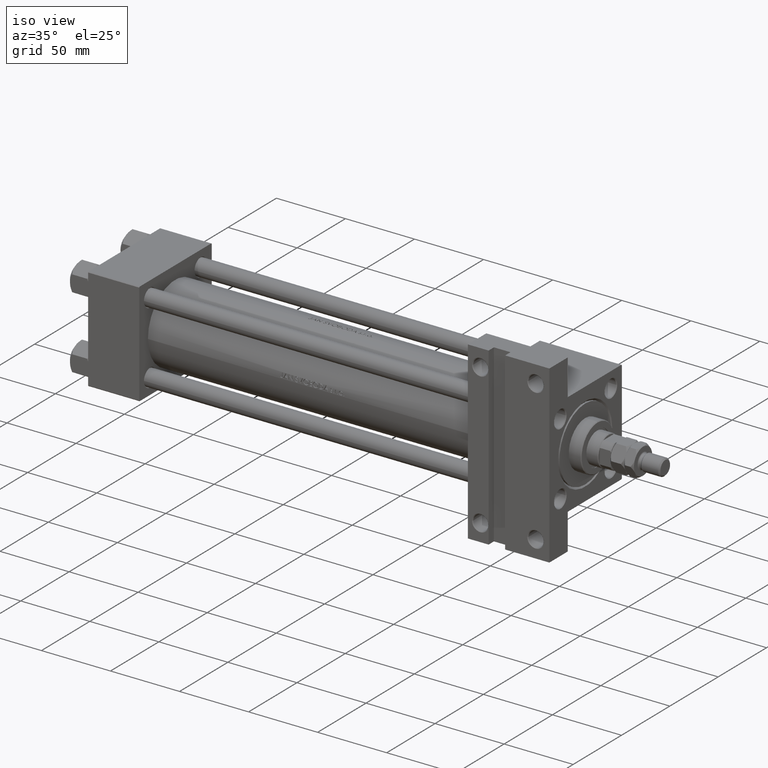
[diagram: clean part render]
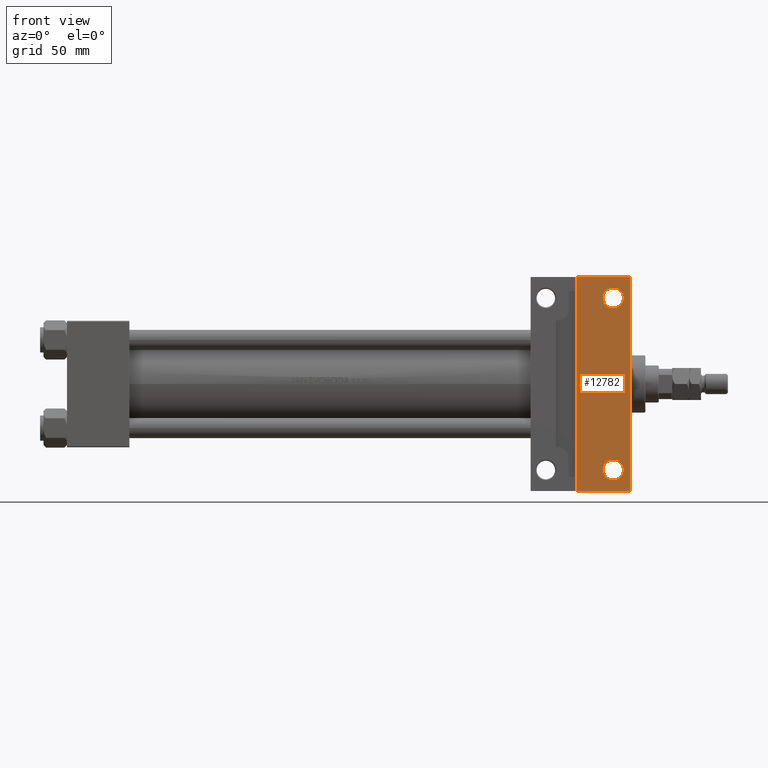
[diagram: tour spotlight — one face highlighted and labeled with its STEP entity id]
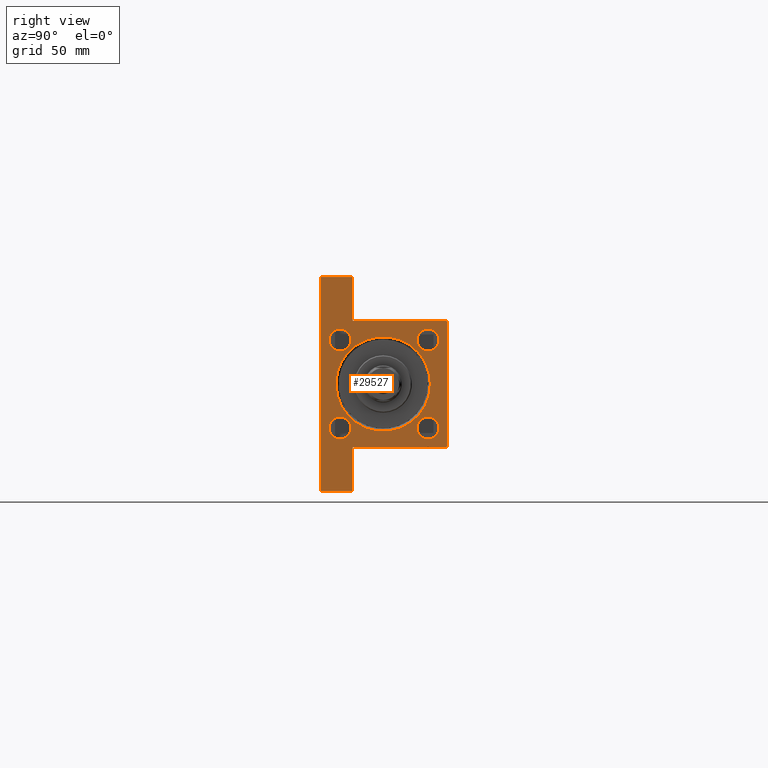
[diagram: tour spotlight — one face highlighted and labeled with its STEP entity id]
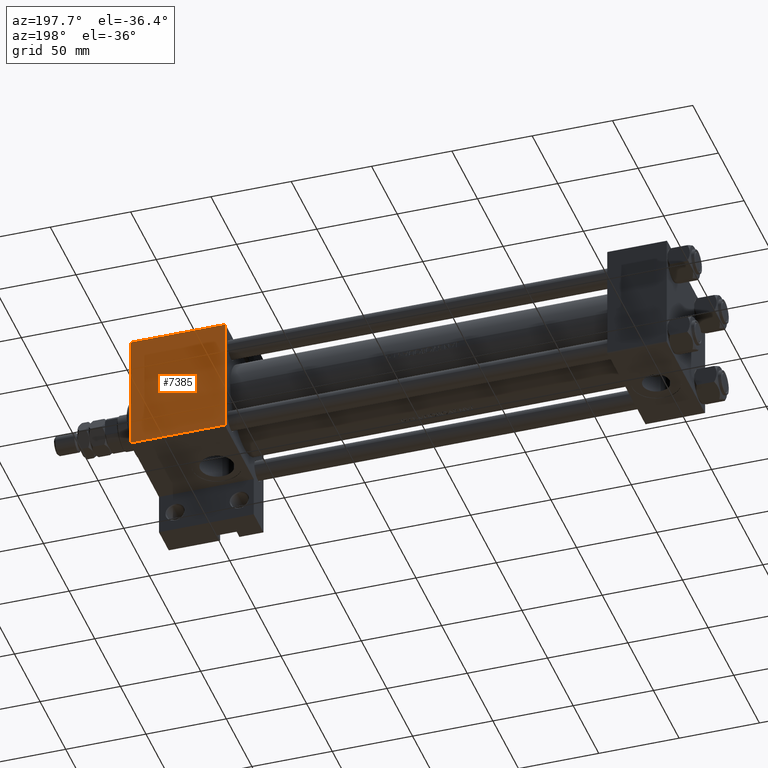
[diagram: tour spotlight — one face highlighted and labeled with its STEP entity id]
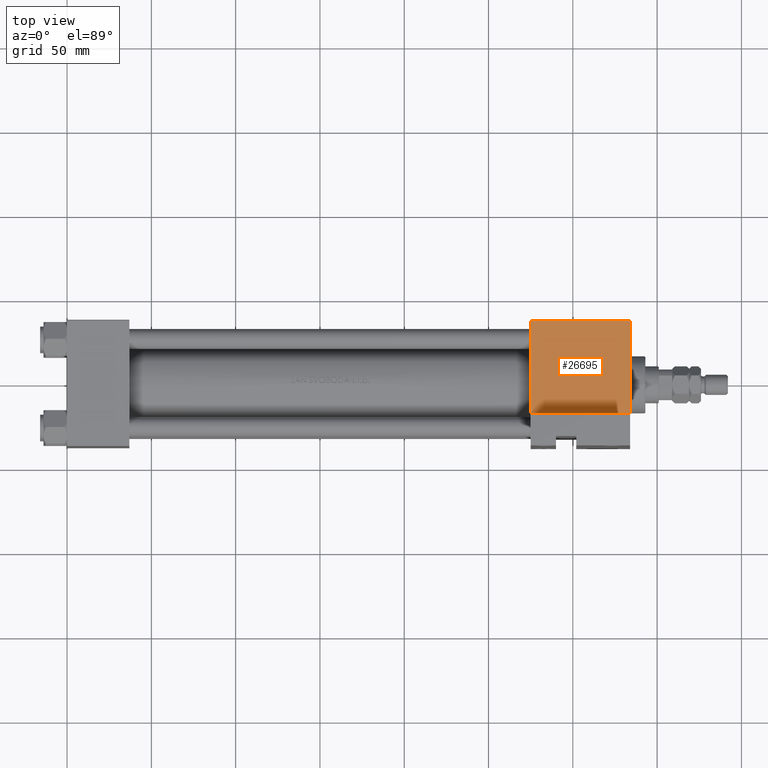
[diagram: tour spotlight — one face highlighted and labeled with its STEP entity id]
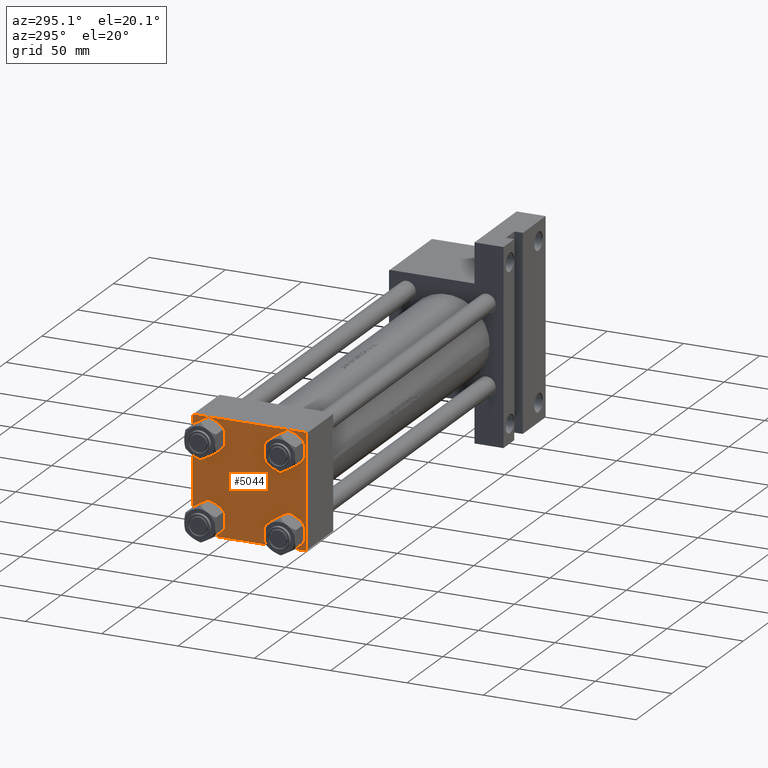
[diagram: tour spotlight — one face highlighted and labeled with its STEP entity id]
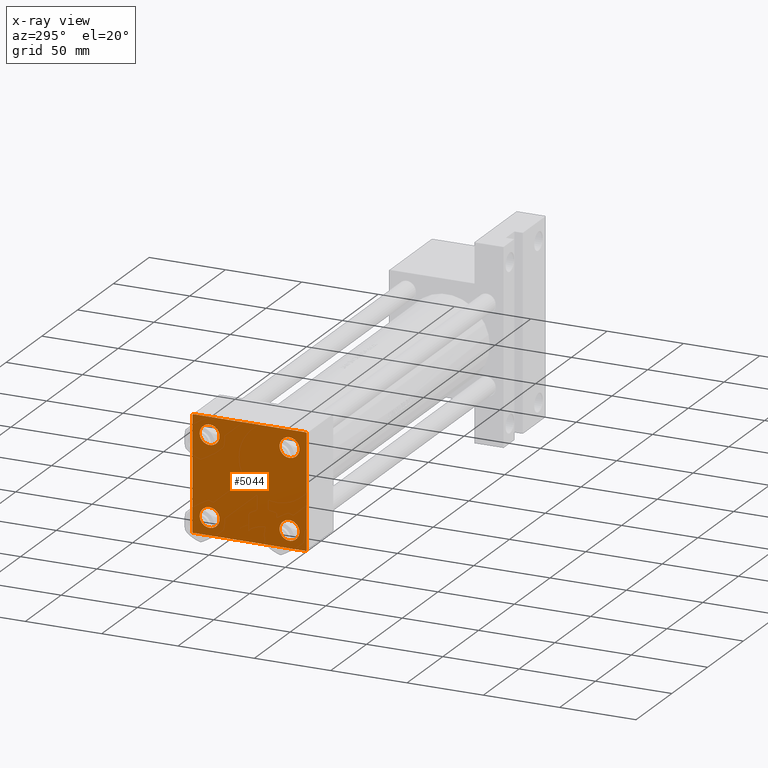
[diagram: x-ray of the same camera — body ghosted, this tour face saturated]
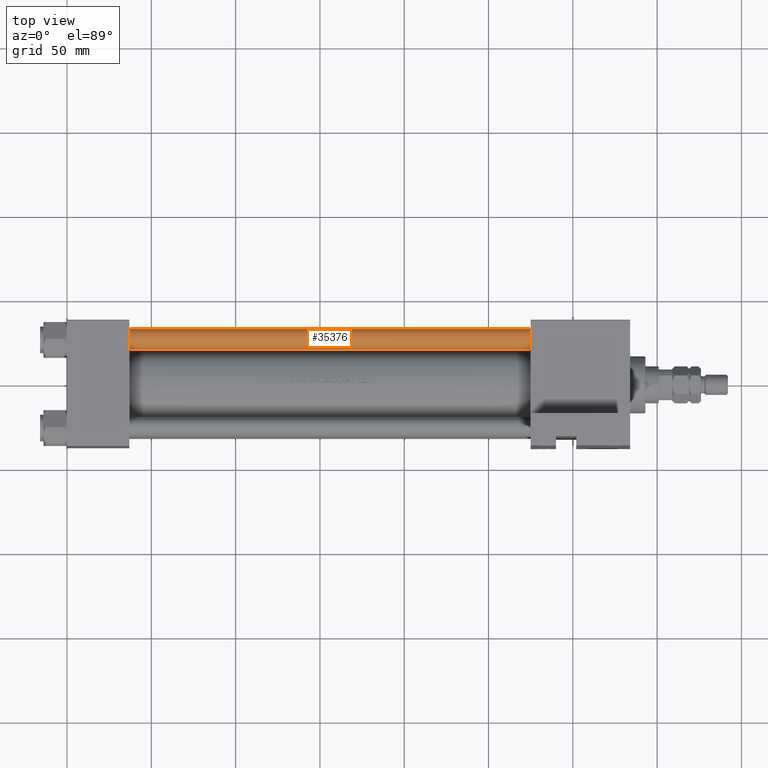
[diagram: tour spotlight — one face highlighted and labeled with its STEP entity id]
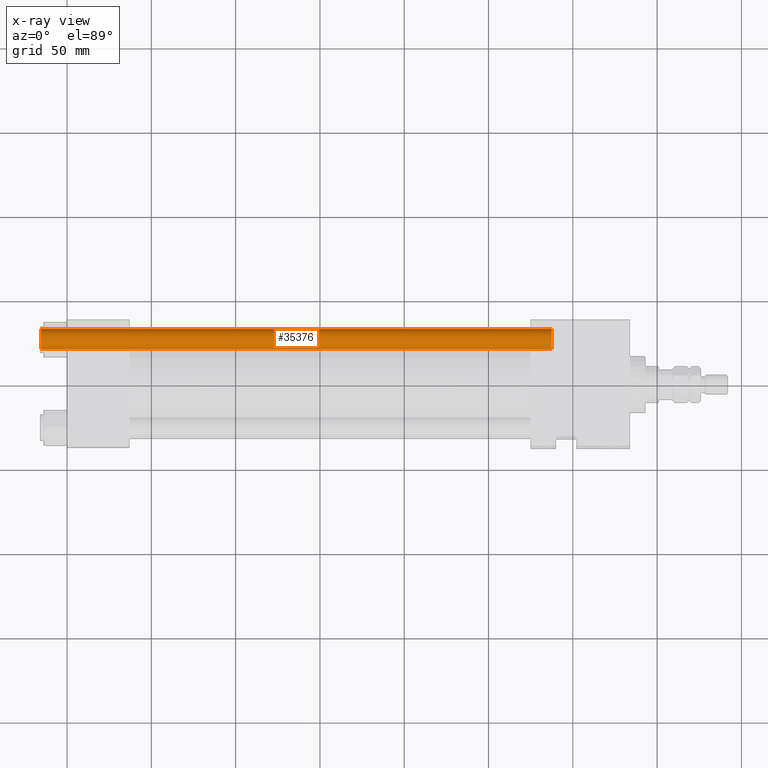
[diagram: x-ray of the same camera — body ghosted, this tour face saturated]
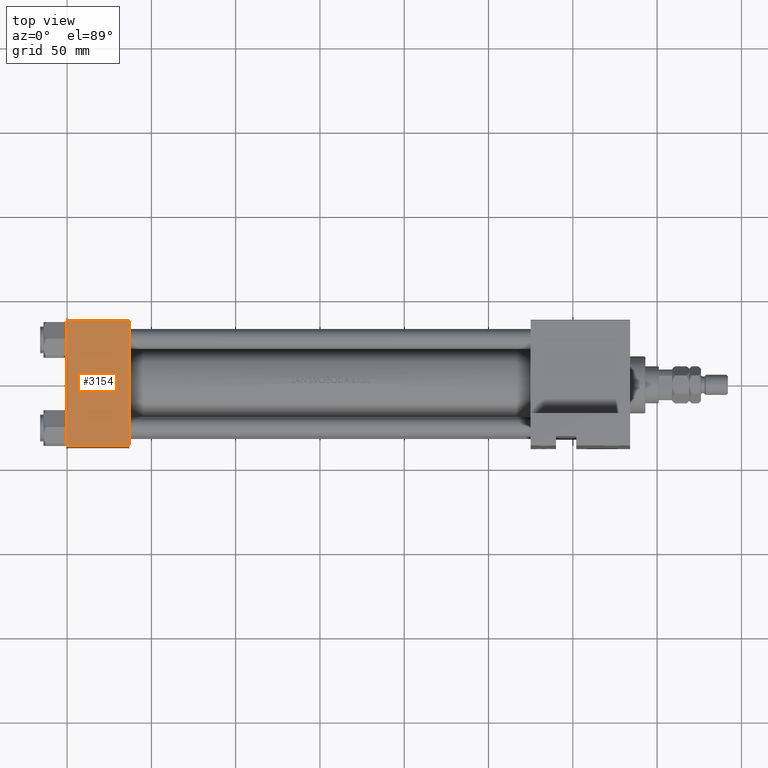
[diagram: tour spotlight — one face highlighted and labeled with its STEP entity id]
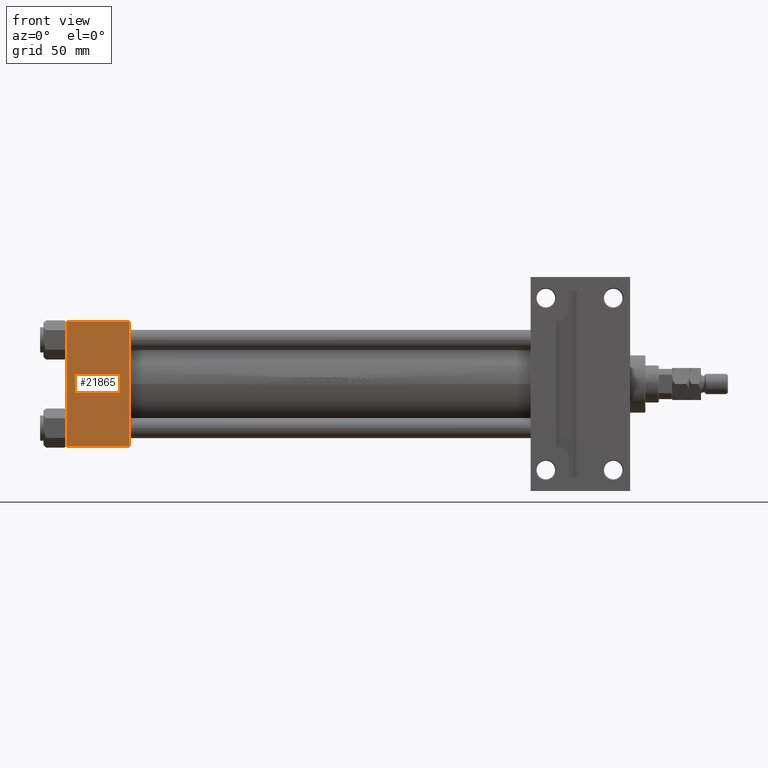
[diagram: tour spotlight — one face highlighted and labeled with its STEP entity id]
A machine part: a face-by-face anatomy tour. The part has 1152 B-rep faces; the first image is the clean iso view, then the 8 largest visible faces are spotlighted one at a time (largest first), each with its STEP entity span.

Face 1 — front view, entity #12782. In plain terms, the highlighted planar face has unit normal (0, -1, 0).
Definition (entity closure, byte-faithful):
#1235 = AXIS2_PLACEMENT_3D ( 'NONE', #19201, #34377, #41590 ) ;
#1619 = CARTESIAN_POINT ( 'NONE',  ( 333.9999999999999432, 37.50000000000000000, -37.50000000000000000 ) ) ;
#2319 = CARTESIAN_POINT ( 'NONE',  ( 323.9999999999999432, 51.00000000000000000, -37.50000000000000000 ) ) ;
#3467 = ORIENTED_EDGE ( 'NONE', *, *, #6993, .T. ) ;
#4220 = DIRECTION ( 'NONE',  ( -1.000000000000000000, 0.000000000000000000, 0.000000000000000000 ) ) ;
#4731 = DIRECTION ( 'NONE',  ( -0.000000000000000000, -1.000000000000000000, -0.000000000000000000 ) ) ;
#5249 = AXIS2_PLACEMENT_3D ( 'NONE', #2319, #10018, #14000 ) ;
#6542 = VECTOR ( 'NONE', #13342, 1000.000000000000000 ) ;
#6993 = EDGE_CURVE ( 'NONE', #28264, #33485, #35379, .T. ) ;
#7058 = ORIENTED_EDGE ( 'NONE', *, *, #43114, .T. ) ;
#7986 = LINE ( 'NONE', #22180, #10989 ) ;
#7994 = VERTEX_POINT ( 'NONE', #43652 ) ;
#8443 = LINE ( 'NONE', #20382, #13829 ) ;
#8484 = VERTEX_POINT ( 'NONE', #38813 ) ;
#9744 = EDGE_CURVE ( 'NONE', #7994, #47477, #29853, .T. ) ;
#10018 = DIRECTION ( 'NONE',  ( -0.000000000000000000, -0.000000000000000000, 1.000000000000000000 ) ) ;
#10350 = ORIENTED_EDGE ( 'NONE', *, *, #29813, .F. ) ;
#10789 = ORIENTED_EDGE ( 'NONE', *, *, #16636, .T. ) ;
#10989 = VECTOR ( 'NONE', #33619, 1000.000000000000000 ) ;
#11017 = CIRCLE ( 'NONE', #27725, 5.999500000000046462 ) ;
#12548 = FACE_OUTER_BOUND ( 'NONE', #42122, .T. ) ;
#12782 = ADVANCED_FACE ( 'NONE', ( #12548, #20269, #16288 ), #35699, .T. ) ;
#13342 = DIRECTION ( 'NONE',  ( -1.000000000000000000, -0.000000000000000000, -0.000000000000000000 ) ) ;
#13829 = VECTOR ( 'NONE', #4731, 1000.000000000000000 ) ;
#14000 = DIRECTION ( 'NONE',  ( -1.000000000000000000, 0.000000000000000000, 0.000000000000000000 ) ) ;
#14330 = VERTEX_POINT ( 'NONE', #39676 ) ;
#16288 = FACE_BOUND ( 'NONE', #22238, .T. ) ;
#16371 = CARTESIAN_POINT ( 'NONE',  ( 323.9999999999999432, -51.00000000000000000, -37.50000000000000000 ) ) ;
#16619 = ORIENTED_EDGE ( 'NONE', *, *, #38013, .T. ) ;
#16636 = EDGE_CURVE ( 'NONE', #42218, #14330, #22743, .T. ) ;
#16844 = EDGE_CURVE ( 'NONE', #8484, #42218, #7986, .T. ) ;
#18128 = EDGE_CURVE ( 'NONE', #47477, #7994, #11017, .T. ) ;
#18641 = DIRECTION ( 'NONE',  ( -0.000000000000000000, -0.000000000000000000, 1.000000000000000000 ) ) ;
#19201 = CARTESIAN_POINT ( 'NONE',  ( 323.9999999999999432, 51.00000000000000000, -37.50000000000000000 ) ) ;
#19330 = CARTESIAN_POINT ( 'NONE',  ( 333.9999999999999432, 63.49999999999997158, -37.50000000000000000 ) ) ;
#19917 = ORIENTED_EDGE ( 'NONE', *, *, #18128, .T. ) ;
#20269 = FACE_BOUND ( 'NONE', #29995, .T. ) ;
#20382 = CARTESIAN_POINT ( 'NONE',  ( 302.0000000000000000, -63.49999999999997158, -37.50000000000000000 ) ) ;
#20521 = DIRECTION ( 'NONE',  ( -1.000000000000000000, 0.000000000000000000, -0.000000000000000000 ) ) ;
#21220 = CARTESIAN_POINT ( 'NONE',  ( 318.0004999999999313, -51.00000000000000000, -37.50000000000000000 ) ) ;
#22151 = VECTOR ( 'NONE', #45127, 1000.000000000000000 ) ;
#22180 = CARTESIAN_POINT ( 'NONE',  ( 274.9999999999999432, 63.49999999999997158, -37.50000000000000000 ) ) ;
#22238 = EDGE_LOOP ( 'NONE', ( #3467, #16619 ) ) ;
#22390 = ORIENTED_EDGE ( 'NONE', *, *, #9744, .T. ) ;
#22743 = LINE ( 'NONE', #26946, #22151 ) ;
#23266 = DIRECTION ( 'NONE',  ( 0.000000000000000000, 0.000000000000000000, -1.000000000000000000 ) ) ;
#24728 = VERTEX_POINT ( 'NONE', #48351 ) ;
#26841 = CARTESIAN_POINT ( 'NONE',  ( 323.9999999999999432, -51.00000000000000000, -37.50000000000000000 ) ) ;
#26946 = CARTESIAN_POINT ( 'NONE',  ( 333.9999999999999432, 37.50000000000000000, -37.50000000000000000 ) ) ;
#27725 = AXIS2_PLACEMENT_3D ( 'NONE', #26841, #18641, #4220 ) ;
#28050 = DIRECTION ( 'NONE',  ( -0.000000000000000000, -0.000000000000000000, 1.000000000000000000 ) ) ;
#28264 = VERTEX_POINT ( 'NONE', #46003 ) ;
#28312 = DIRECTION ( 'NONE',  ( -1.000000000000000000, 0.000000000000000000, 0.000000000000000000 ) ) ;
#29813 = EDGE_CURVE ( 'NONE', #8484, #24728, #8443, .T. ) ;
#29853 = CIRCLE ( 'NONE', #48946, 5.999500000000046462 ) ;
#29995 = EDGE_LOOP ( 'NONE', ( #19917, #22390 ) ) ;
#33485 = VERTEX_POINT ( 'NONE', #42962 ) ;
#33619 = DIRECTION ( 'NONE',  ( 1.000000000000000000, 0.000000000000000000, 0.000000000000000000 ) ) ;
#34377 = DIRECTION ( 'NONE',  ( -0.000000000000000000, -0.000000000000000000, 1.000000000000000000 ) ) ;
#35379 = CIRCLE ( 'NONE', #1235, 5.999500000000046462 ) ;
#35699 = PLANE ( 'NONE',  #45434 ) ;
#35978 = CARTESIAN_POINT ( 'NONE',  ( 274.9999999999999432, -63.50000000000002842, -37.50000000000000000 ) ) ;
#38013 = EDGE_CURVE ( 'NONE', #33485, #28264, #47355, .T. ) ;
#38813 = CARTESIAN_POINT ( 'NONE',  ( 302.0000000000000000, 63.49999999999997158, -37.50000000000000000 ) ) ;
#39676 = CARTESIAN_POINT ( 'NONE',  ( 333.9999999999999432, -63.50000000000002842, -37.50000000000000000 ) ) ;
#41590 = DIRECTION ( 'NONE',  ( -1.000000000000000000, 0.000000000000000000, 0.000000000000000000 ) ) ;
#42122 = EDGE_LOOP ( 'NONE', ( #10350, #47846, #10789, #7058 ) ) ;
#42218 = VERTEX_POINT ( 'NONE', #19330 ) ;
#42962 = CARTESIAN_POINT ( 'NONE',  ( 329.9995000000000118, 51.00000000000000000, -37.50000000000000000 ) ) ;
#43114 = EDGE_CURVE ( 'NONE', #14330, #24728, #43463, .T. ) ;
#43463 = LINE ( 'NONE', #35978, #6542 ) ;
#43652 = CARTESIAN_POINT ( 'NONE',  ( 329.9995000000000118, -51.00000000000000000, -37.50000000000000000 ) ) ;
#45127 = DIRECTION ( 'NONE',  ( 0.000000000000000000, -1.000000000000000000, 0.000000000000000000 ) ) ;
#45434 = AXIS2_PLACEMENT_3D ( 'NONE', #1619, #23266, #20521 ) ;
#46003 = CARTESIAN_POINT ( 'NONE',  ( 318.0004999999999313, 51.00000000000000000, -37.50000000000000000 ) ) ;
#47355 = CIRCLE ( 'NONE', #5249, 5.999500000000046462 ) ;
#47477 = VERTEX_POINT ( 'NONE', #21220 ) ;
#47846 = ORIENTED_EDGE ( 'NONE', *, *, #16844, .T. ) ;
#48351 = CARTESIAN_POINT ( 'NONE',  ( 302.0000000000000000, -63.49999999999997158, -37.50000000000000000 ) ) ;
#48946 = AXIS2_PLACEMENT_3D ( 'NONE', #16371, #28050, #28312 ) ;

Face 2 — right view, entity #29527. In plain terms, the highlighted planar face has unit normal (-1, 0, 0).
Definition (entity closure, byte-faithful):
#112 = CARTESIAN_POINT ( 'NONE',  ( 333.9999999999999432, 37.50000000000000000, 36.99999999999993605 ) ) ;
#210 = AXIS2_PLACEMENT_3D ( 'NONE', #33993, #45429, #14840 ) ;
#305 = CARTESIAN_POINT ( 'NONE',  ( 333.9999999999999432, -37.50000000000000000, 36.99999999999992184 ) ) ;
#707 = CIRCLE ( 'NONE', #28512, 6.499999999999974243 ) ;
#711 = VERTEX_POINT ( 'NONE', #10222 ) ;
#854 = DIRECTION ( 'NONE',  ( 0.000000000000000000, 0.000000000000000000, 1.000000000000000000 ) ) ;
#856 = DIRECTION ( 'NONE',  ( -1.000000000000000000, -0.000000000000000000, 0.000000000000000000 ) ) ;
#932 = CARTESIAN_POINT ( 'NONE',  ( 333.9999999999999432, 0.000000000000000000, -0.5000000000000004441 ) ) ;
#963 = ORIENTED_EDGE ( 'NONE', *, *, #35171, .T. ) ;
#1088 = DIRECTION ( 'NONE',  ( -1.000000000000000000, -0.000000000000000000, 0.000000000000000000 ) ) ;
#1905 = EDGE_CURVE ( 'NONE', #32366, #42218, #9208, .T. ) ;
#2665 = EDGE_CURVE ( 'NONE', #34632, #21508, #36648, .T. ) ;
#3097 = CIRCLE ( 'NONE', #30066, 6.499999999999974243 ) ;
#4368 = DIRECTION ( 'NONE',  ( 0.000000000000000000, 0.000000000000000000, 1.000000000000000000 ) ) ;
#4405 = VERTEX_POINT ( 'NONE', #31500 ) ;
#4619 = DIRECTION ( 'NONE',  ( -0.000000000000000000, -0.7071067811865474617, -0.7071067811865474617 ) ) ;
#4753 = CARTESIAN_POINT ( 'NONE',  ( 333.9999999999999432, 37.49999999999993605, -18.50000000000000000 ) ) ;
#4862 = DIRECTION ( 'NONE',  ( -1.000000000000000000, -0.000000000000000000, 0.000000000000000000 ) ) ;
#5993 = EDGE_LOOP ( 'NONE', ( #963, #12740 ) ) ;
#6105 = CARTESIAN_POINT ( 'NONE',  ( 333.9999999999999432, -26.14999999999999147, 32.64999999999997016 ) ) ;
#6540 = CARTESIAN_POINT ( 'NONE',  ( 333.9999999999999432, 63.49999999999997158, -18.50000000000000000 ) ) ;
#6763 = VECTOR ( 'NONE', #24387, 1000.000000000000000 ) ;
#7013 = VERTEX_POINT ( 'NONE', #305 ) ;
#8445 = EDGE_CURVE ( 'NONE', #28674, #13009, #22916, .T. ) ;
#8536 = EDGE_CURVE ( 'NONE', #7013, #25971, #42792, .T. ) ;
#9208 = LINE ( 'NONE', #32086, #37728 ) ;
#9232 = DIRECTION ( 'NONE',  ( 0.000000000000000000, -0.7071067811865474617, 0.7071067811865474617 ) ) ;
#9472 = CARTESIAN_POINT ( 'NONE',  ( 333.9999999999999432, 36.99999999999994316, 37.49999999999999289 ) ) ;
#9798 = CIRCLE ( 'NONE', #37610, 6.499999999999981348 ) ;
#9878 = DIRECTION ( 'NONE',  ( -1.000000000000000000, -0.000000000000000000, 0.000000000000000000 ) ) ;
#10222 = CARTESIAN_POINT ( 'NONE',  ( 333.9999999999999432, 3.429011037612582176E-15, 27.49999999999993960 ) ) ;
#10364 = VERTEX_POINT ( 'NONE', #112 ) ;
#10378 = ORIENTED_EDGE ( 'NONE', *, *, #43020, .T. ) ;
#10477 = CARTESIAN_POINT ( 'NONE',  ( 333.9999999999999432, 26.14999999999999858, 26.15000000000000213 ) ) ;
#10565 = CIRCLE ( 'NONE', #12943, 6.499999999999974243 ) ;
#10738 = LINE ( 'NONE', #21948, #22589 ) ;
#10879 = VECTOR ( 'NONE', #4619, 1000.000000000000114 ) ;
#11205 = AXIS2_PLACEMENT_3D ( 'NONE', #42925, #24016, #28250 ) ;
#11510 = VECTOR ( 'NONE', #42552, 1000.000000000000000 ) ;
#11891 = CARTESIAN_POINT ( 'NONE',  ( 333.9999999999999432, -26.14999999999999147, 19.65000000000001990 ) ) ;
#12020 = DIRECTION ( 'NONE',  ( 0.000000000000000000, 0.000000000000000000, 1.000000000000000000 ) ) ;
#12516 = CARTESIAN_POINT ( 'NONE',  ( 333.9999999999999432, 0.000000000000000000, -0.5000000000000004441 ) ) ;
#12740 = ORIENTED_EDGE ( 'NONE', *, *, #2665, .T. ) ;
#12904 = VERTEX_POINT ( 'NONE', #36660 ) ;
#12937 = VERTEX_POINT ( 'NONE', #28701 ) ;
#12943 = AXIS2_PLACEMENT_3D ( 'NONE', #20820, #24796, #46952 ) ;
#13009 = VERTEX_POINT ( 'NONE', #22466 ) ;
#13214 = AXIS2_PLACEMENT_3D ( 'NONE', #35172, #27462, #854 ) ;
#14330 = VERTEX_POINT ( 'NONE', #39676 ) ;
#14572 = ORIENTED_EDGE ( 'NONE', *, *, #37957, .T. ) ;
#14840 = DIRECTION ( 'NONE',  ( 0.000000000000000000, 0.000000000000000000, 1.000000000000000000 ) ) ;
#15025 = VERTEX_POINT ( 'NONE', #11891 ) ;
#15925 = CARTESIAN_POINT ( 'NONE',  ( 333.9999999999999432, 37.50000000000000000, 37.49999999999999289 ) ) ;
#16006 = EDGE_CURVE ( 'NONE', #10364, #26826, #18075, .T. ) ;
#16019 = FACE_BOUND ( 'NONE', #31575, .T. ) ;
#16036 = LINE ( 'NONE', #27724, #10879 ) ;
#16126 = VECTOR ( 'NONE', #35285, 1000.000000000000000 ) ;
#16129 = CARTESIAN_POINT ( 'NONE',  ( 333.9999999999999432, -63.50000000000002842, -18.50000000000000000 ) ) ;
#16408 = CARTESIAN_POINT ( 'NONE',  ( 333.9999999999999432, -37.50000000000000711, -18.50000000000000355 ) ) ;
#16636 = EDGE_CURVE ( 'NONE', #42218, #14330, #22743, .T. ) ;
#16721 = EDGE_CURVE ( 'NONE', #12937, #37268, #707, .T. ) ;
#16734 = CARTESIAN_POINT ( 'NONE',  ( 333.9999999999999432, -26.15000000000000213, -19.65000000000002345 ) ) ;
#16737 = ORIENTED_EDGE ( 'NONE', *, *, #36187, .T. ) ;
#17356 = EDGE_CURVE ( 'NONE', #15025, #44993, #3097, .T. ) ;
#17623 = EDGE_LOOP ( 'NONE', ( #40638, #14572 ) ) ;
#18075 = LINE ( 'NONE', #44689, #19941 ) ;
#18220 = ORIENTED_EDGE ( 'NONE', *, *, #1905, .F. ) ;
#18929 = CARTESIAN_POINT ( 'NONE',  ( 333.9999999999999432, -37.50000000000000000, 37.49999999999997868 ) ) ;
#18964 = ORIENTED_EDGE ( 'NONE', *, *, #16006, .F. ) ;
#19070 = ORIENTED_EDGE ( 'NONE', *, *, #38802, .T. ) ;
#19330 = CARTESIAN_POINT ( 'NONE',  ( 333.9999999999999432, 63.49999999999997158, -37.50000000000000000 ) ) ;
#19631 = LINE ( 'NONE', #16129, #16126 ) ;
#19941 = VECTOR ( 'NONE', #33253, 1000.000000000000000 ) ;
#20815 = CARTESIAN_POINT ( 'NONE',  ( 333.9999999999999432, -26.15000000000000213, -32.64999999999998437 ) ) ;
#20820 = CARTESIAN_POINT ( 'NONE',  ( 333.9999999999999432, 26.14999999999999858, 26.15000000000000213 ) ) ;
#20837 = DIRECTION ( 'NONE',  ( 0.000000000000000000, 0.000000000000000000, 1.000000000000000000 ) ) ;
#21275 = ORIENTED_EDGE ( 'NONE', *, *, #41223, .T. ) ;
#21508 = VERTEX_POINT ( 'NONE', #20815 ) ;
#21704 = ORIENTED_EDGE ( 'NONE', *, *, #8445, .T. ) ;
#21942 = ORIENTED_EDGE ( 'NONE', *, *, #27216, .T. ) ;
#21948 = CARTESIAN_POINT ( 'NONE',  ( 333.9999999999999432, -63.50000000000002842, -18.50000000000000000 ) ) ;
#21964 = ORIENTED_EDGE ( 'NONE', *, *, #16721, .T. ) ;
#22151 = VECTOR ( 'NONE', #45127, 1000.000000000000000 ) ;
#22466 = CARTESIAN_POINT ( 'NONE',  ( 333.9999999999999432, -36.99999999999994316, 37.49999999999997868 ) ) ;
#22589 = VECTOR ( 'NONE', #33393, 1000.000000000000000 ) ;
#22701 = EDGE_LOOP ( 'NONE', ( #25596, #10378 ) ) ;
#22743 = LINE ( 'NONE', #26946, #22151 ) ;
#22838 = DIRECTION ( 'NONE',  ( -1.000000000000000000, -0.000000000000000000, 0.000000000000000000 ) ) ;
#22916 = LINE ( 'NONE', #15925, #11510 ) ;
#23245 = FACE_BOUND ( 'NONE', #22701, .T. ) ;
#23487 = CIRCLE ( 'NONE', #48913, 27.99999999999994316 ) ;
#23740 = FACE_BOUND ( 'NONE', #34118, .T. ) ;
#24016 = DIRECTION ( 'NONE',  ( -1.000000000000000000, -0.000000000000000000, 0.000000000000000000 ) ) ;
#24387 = DIRECTION ( 'NONE',  ( 0.000000000000000000, -9.251858538542972814E-17, -1.000000000000000000 ) ) ;
#24481 = EDGE_CURVE ( 'NONE', #27581, #14330, #10738, .T. ) ;
#24578 = CARTESIAN_POINT ( 'NONE',  ( 333.9999999999999432, -26.14999999999999147, 26.14999999999999503 ) ) ;
#24796 = DIRECTION ( 'NONE',  ( -1.000000000000000000, -0.000000000000000000, 0.000000000000000000 ) ) ;
#25368 = EDGE_CURVE ( 'NONE', #13009, #7013, #16036, .T. ) ;
#25505 = CARTESIAN_POINT ( 'NONE',  ( 333.9999999999999432, 63.49999999999997158, -18.50000000000000000 ) ) ;
#25596 = ORIENTED_EDGE ( 'NONE', *, *, #32882, .T. ) ;
#25971 = VERTEX_POINT ( 'NONE', #16408 ) ;
#26324 = EDGE_CURVE ( 'NONE', #12904, #711, #45764, .T. ) ;
#26826 = VERTEX_POINT ( 'NONE', #4753 ) ;
#26946 = CARTESIAN_POINT ( 'NONE',  ( 333.9999999999999432, 37.50000000000000000, -37.50000000000000000 ) ) ;
#27212 = FACE_OUTER_BOUND ( 'NONE', #38083, .T. ) ;
#27216 = EDGE_CURVE ( 'NONE', #37268, #12937, #10565, .T. ) ;
#27283 = DIRECTION ( 'NONE',  ( 0.000000000000000000, 0.000000000000000000, 1.000000000000000000 ) ) ;
#27462 = DIRECTION ( 'NONE',  ( -1.000000000000000000, -0.000000000000000000, 0.000000000000000000 ) ) ;
#27581 = VERTEX_POINT ( 'NONE', #48866 ) ;
#27724 = CARTESIAN_POINT ( 'NONE',  ( 333.9999999999999432, -37.50000000000000000, 36.99999999999992184 ) ) ;
#28250 = DIRECTION ( 'NONE',  ( 0.000000000000000000, 0.000000000000000000, 1.000000000000000000 ) ) ;
#28512 = AXIS2_PLACEMENT_3D ( 'NONE', #10477, #43597, #32637 ) ;
#28674 = VERTEX_POINT ( 'NONE', #31420 ) ;
#28701 = CARTESIAN_POINT ( 'NONE',  ( 333.9999999999999432, 26.14999999999999858, 19.65000000000002700 ) ) ;
#29527 = ADVANCED_FACE ( 'NONE', ( #23740, #16019, #46374, #23245, #38167, #27212 ), #38667, .F. ) ;
#29703 = AXIS2_PLACEMENT_3D ( 'NONE', #42149, #856, #34437 ) ;
#29910 = VECTOR ( 'NONE', #9232, 1000.000000000000114 ) ;
#30066 = AXIS2_PLACEMENT_3D ( 'NONE', #24578, #9878, #20837 ) ;
#30384 = VERTEX_POINT ( 'NONE', #37656 ) ;
#30649 = AXIS2_PLACEMENT_3D ( 'NONE', #38431, #4862, #4368 ) ;
#31420 = CARTESIAN_POINT ( 'NONE',  ( 333.9999999999999432, 36.99999999999994316, 37.49999999999999289 ) ) ;
#31500 = CARTESIAN_POINT ( 'NONE',  ( 333.9999999999999432, 26.14999999999999858, -32.64999999999998437 ) ) ;
#31575 = EDGE_LOOP ( 'NONE', ( #33465, #19070 ) ) ;
#31623 = ORIENTED_EDGE ( 'NONE', *, *, #48481, .T. ) ;
#32086 = CARTESIAN_POINT ( 'NONE',  ( 333.9999999999999432, 63.49999999999997158, -18.50000000000000000 ) ) ;
#32366 = VERTEX_POINT ( 'NONE', #25505 ) ;
#32637 = DIRECTION ( 'NONE',  ( 0.000000000000000000, 0.000000000000000000, 1.000000000000000000 ) ) ;
#32660 = ORIENTED_EDGE ( 'NONE', *, *, #16636, .F. ) ;
#32882 = EDGE_CURVE ( 'NONE', #4405, #30384, #47859, .T. ) ;
#33046 = CARTESIAN_POINT ( 'NONE',  ( 333.9999999999999432, 26.14999999999999858, 32.64999999999997726 ) ) ;
#33253 = DIRECTION ( 'NONE',  ( 0.000000000000000000, 0.000000000000000000, -1.000000000000000000 ) ) ;
#33393 = DIRECTION ( 'NONE',  ( 0.000000000000000000, 0.000000000000000000, -1.000000000000000000 ) ) ;
#33465 = ORIENTED_EDGE ( 'NONE', *, *, #17356, .T. ) ;
#33993 = CARTESIAN_POINT ( 'NONE',  ( 333.9999999999999432, 26.14999999999999858, -26.15000000000000213 ) ) ;
#34118 = EDGE_LOOP ( 'NONE', ( #21964, #21942 ) ) ;
#34437 = DIRECTION ( 'NONE',  ( 0.000000000000000000, 0.000000000000000000, 1.000000000000000000 ) ) ;
#34632 = VERTEX_POINT ( 'NONE', #16734 ) ;
#34762 = CARTESIAN_POINT ( 'NONE',  ( 333.9999999999999432, 26.14999999999999858, -26.15000000000000213 ) ) ;
#35171 = EDGE_CURVE ( 'NONE', #21508, #34632, #39399, .T. ) ;
#35172 = CARTESIAN_POINT ( 'NONE',  ( 333.9999999999999432, -26.14999999999999147, 26.14999999999999503 ) ) ;
#35285 = DIRECTION ( 'NONE',  ( -0.000000000000000000, -1.000000000000000000, -0.000000000000000000 ) ) ;
#35458 = ORIENTED_EDGE ( 'NONE', *, *, #25368, .T. ) ;
#36187 = EDGE_CURVE ( 'NONE', #10364, #28674, #47294, .T. ) ;
#36648 = CIRCLE ( 'NONE', #11205, 6.499999999999981348 ) ;
#36660 = CARTESIAN_POINT ( 'NONE',  ( 333.9999999999999432, 0.000000000000000000, -28.49999999999994316 ) ) ;
#37268 = VERTEX_POINT ( 'NONE', #33046 ) ;
#37610 = AXIS2_PLACEMENT_3D ( 'NONE', #34762, #22838, #27283 ) ;
#37656 = CARTESIAN_POINT ( 'NONE',  ( 333.9999999999999432, 26.14999999999999858, -19.65000000000002345 ) ) ;
#37728 = VECTOR ( 'NONE', #47018, 1000.000000000000000 ) ;
#37957 = EDGE_CURVE ( 'NONE', #711, #12904, #23487, .T. ) ;
#38083 = EDGE_LOOP ( 'NONE', ( #18964, #16737, #21704, #35458, #43335, #21275, #45633, #32660, #18220, #31623 ) ) ;
#38167 = FACE_BOUND ( 'NONE', #17623, .T. ) ;
#38431 = CARTESIAN_POINT ( 'NONE',  ( 333.9999999999999432, -26.15000000000000213, -26.15000000000000213 ) ) ;
#38667 = PLANE ( 'NONE',  #29703 ) ;
#38802 = EDGE_CURVE ( 'NONE', #44993, #15025, #48169, .T. ) ;
#39399 = CIRCLE ( 'NONE', #30649, 6.499999999999981348 ) ;
#39676 = CARTESIAN_POINT ( 'NONE',  ( 333.9999999999999432, -63.50000000000002842, -37.50000000000000000 ) ) ;
#40623 = LINE ( 'NONE', #6540, #41844 ) ;
#40638 = ORIENTED_EDGE ( 'NONE', *, *, #26324, .T. ) ;
#41223 = EDGE_CURVE ( 'NONE', #25971, #27581, #19631, .T. ) ;
#41738 = DIRECTION ( 'NONE',  ( -1.000000000000000000, -0.000000000000000000, 0.000000000000000000 ) ) ;
#41844 = VECTOR ( 'NONE', #47837, 1000.000000000000000 ) ;
#42149 = CARTESIAN_POINT ( 'NONE',  ( 333.9999999999999432, 0.000000000000000000, 0.000000000000000000 ) ) ;
#42218 = VERTEX_POINT ( 'NONE', #19330 ) ;
#42552 = DIRECTION ( 'NONE',  ( 0.000000000000000000, -1.000000000000000000, -1.850371707708594316E-16 ) ) ;
#42792 = LINE ( 'NONE', #18929, #6763 ) ;
#42925 = CARTESIAN_POINT ( 'NONE',  ( 333.9999999999999432, -26.15000000000000213, -26.15000000000000213 ) ) ;
#43020 = EDGE_CURVE ( 'NONE', #30384, #4405, #9798, .T. ) ;
#43335 = ORIENTED_EDGE ( 'NONE', *, *, #8536, .T. ) ;
#43597 = DIRECTION ( 'NONE',  ( -1.000000000000000000, -0.000000000000000000, 0.000000000000000000 ) ) ;
#44689 = CARTESIAN_POINT ( 'NONE',  ( 333.9999999999999432, 37.50000000000000000, 37.49999999999999289 ) ) ;
#44993 = VERTEX_POINT ( 'NONE', #6105 ) ;
#45127 = DIRECTION ( 'NONE',  ( 0.000000000000000000, -1.000000000000000000, 0.000000000000000000 ) ) ;
#45429 = DIRECTION ( 'NONE',  ( -1.000000000000000000, -0.000000000000000000, 0.000000000000000000 ) ) ;
#45633 = ORIENTED_EDGE ( 'NONE', *, *, #24481, .T. ) ;
#45764 = CIRCLE ( 'NONE', #47470, 27.99999999999994316 ) ;
#46374 = FACE_BOUND ( 'NONE', #5993, .T. ) ;
#46456 = DIRECTION ( 'NONE',  ( 0.000000000000000000, 0.000000000000000000, 1.000000000000000000 ) ) ;
#46952 = DIRECTION ( 'NONE',  ( 0.000000000000000000, 0.000000000000000000, 1.000000000000000000 ) ) ;
#47018 = DIRECTION ( 'NONE',  ( 0.000000000000000000, 0.000000000000000000, -1.000000000000000000 ) ) ;
#47294 = LINE ( 'NONE', #9472, #29910 ) ;
#47470 = AXIS2_PLACEMENT_3D ( 'NONE', #932, #41738, #46456 ) ;
#47837 = DIRECTION ( 'NONE',  ( 0.000000000000000000, -1.000000000000000000, 0.000000000000000000 ) ) ;
#47859 = CIRCLE ( 'NONE', #210, 6.499999999999981348 ) ;
#48169 = CIRCLE ( 'NONE', #13214, 6.499999999999974243 ) ;
#48481 = EDGE_CURVE ( 'NONE', #32366, #26826, #40623, .T. ) ;
#48866 = CARTESIAN_POINT ( 'NONE',  ( 333.9999999999999432, -63.50000000000002842, -18.50000000000000000 ) ) ;
#48913 = AXIS2_PLACEMENT_3D ( 'NONE', #12516, #1088, #12020 ) ;

Face 3 — auxiliary view, entity #7385. In plain terms, the highlighted planar face has unit normal (0, -1, -0).
Definition (entity closure, byte-faithful):
#9 = CARTESIAN_POINT ( 'NONE',  ( 333.9999999999999432, 37.50000000000000000, 37.49999999999999289 ) ) ;
#1205 = CARTESIAN_POINT ( 'NONE',  ( 333.9999999999999432, -36.99999999999994316, 37.49999999999997868 ) ) ;
#1700 = LINE ( 'NONE', #1205, #42586 ) ;
#2376 = LINE ( 'NONE', #10804, #17926 ) ;
#5565 = ORIENTED_EDGE ( 'NONE', *, *, #33847, .T. ) ;
#6123 = DIRECTION ( 'NONE',  ( -1.000000000000000000, 0.000000000000000000, 0.000000000000000000 ) ) ;
#7385 = ADVANCED_FACE ( 'NONE', ( #12154 ), #19640, .F. ) ;
#7453 = DIRECTION ( 'NONE',  ( 0.000000000000000000, 1.000000000000000000, 1.850371707708594316E-16 ) ) ;
#8445 = EDGE_CURVE ( 'NONE', #28674, #13009, #22916, .T. ) ;
#9741 = EDGE_CURVE ( 'NONE', #34365, #13009, #1700, .T. ) ;
#9758 = EDGE_LOOP ( 'NONE', ( #12039, #46424, #5565, #32884 ) ) ;
#9988 = AXIS2_PLACEMENT_3D ( 'NONE', #9, #15152, #7453 ) ;
#10178 = EDGE_CURVE ( 'NONE', #28674, #29750, #2376, .T. ) ;
#10804 = CARTESIAN_POINT ( 'NONE',  ( 274.9999999999999432, 36.99999999999994316, 37.49999999999999289 ) ) ;
#11510 = VECTOR ( 'NONE', #42552, 1000.000000000000000 ) ;
#12039 = ORIENTED_EDGE ( 'NONE', *, *, #8445, .F. ) ;
#12154 = FACE_OUTER_BOUND ( 'NONE', #9758, .T. ) ;
#13009 = VERTEX_POINT ( 'NONE', #22466 ) ;
#15152 = DIRECTION ( 'NONE',  ( 0.000000000000000000, 1.850371707708594316E-16, -1.000000000000000000 ) ) ;
#15925 = CARTESIAN_POINT ( 'NONE',  ( 333.9999999999999432, 37.50000000000000000, 37.49999999999999289 ) ) ;
#17926 = VECTOR ( 'NONE', #6123, 1000.000000000000000 ) ;
#18403 = CARTESIAN_POINT ( 'NONE',  ( 274.9999999999999432, 36.99999999999994316, 37.49999999999999289 ) ) ;
#19640 = PLANE ( 'NONE',  #9988 ) ;
#22466 = CARTESIAN_POINT ( 'NONE',  ( 333.9999999999999432, -36.99999999999994316, 37.49999999999997868 ) ) ;
#22916 = LINE ( 'NONE', #15925, #11510 ) ;
#26507 = CARTESIAN_POINT ( 'NONE',  ( 274.9999999999999432, -36.99999999999994316, 37.49999999999997868 ) ) ;
#27734 = LINE ( 'NONE', #35457, #38569 ) ;
#27974 = DIRECTION ( 'NONE',  ( 0.000000000000000000, -1.000000000000000000, -1.850371707708594316E-16 ) ) ;
#28674 = VERTEX_POINT ( 'NONE', #31420 ) ;
#28783 = DIRECTION ( 'NONE',  ( 1.000000000000000000, 0.000000000000000000, 0.000000000000000000 ) ) ;
#29750 = VERTEX_POINT ( 'NONE', #18403 ) ;
#31420 = CARTESIAN_POINT ( 'NONE',  ( 333.9999999999999432, 36.99999999999994316, 37.49999999999999289 ) ) ;
#32884 = ORIENTED_EDGE ( 'NONE', *, *, #9741, .T. ) ;
#33847 = EDGE_CURVE ( 'NONE', #29750, #34365, #27734, .T. ) ;
#34365 = VERTEX_POINT ( 'NONE', #26507 ) ;
#35457 = CARTESIAN_POINT ( 'NONE',  ( 274.9999999999999432, 37.50000000000000000, 37.49999999999999289 ) ) ;
#38569 = VECTOR ( 'NONE', #27974, 1000.000000000000000 ) ;
#42552 = DIRECTION ( 'NONE',  ( 0.000000000000000000, -1.000000000000000000, -1.850371707708594316E-16 ) ) ;
#42586 = VECTOR ( 'NONE', #28783, 1000.000000000000000 ) ;
#46424 = ORIENTED_EDGE ( 'NONE', *, *, #10178, .T. ) ;

Face 4 — top view, entity #26695. In plain terms, the highlighted planar face has unit normal (0, -0, -1).
Definition (entity closure, byte-faithful):
#305 = CARTESIAN_POINT ( 'NONE',  ( 333.9999999999999432, -37.50000000000000000, 36.99999999999992184 ) ) ;
#3440 = VERTEX_POINT ( 'NONE', #31241 ) ;
#3689 = LINE ( 'NONE', #14859, #5863 ) ;
#5566 = LINE ( 'NONE', #11598, #26909 ) ;
#5863 = VECTOR ( 'NONE', #7390, 1000.000000000000000 ) ;
#6763 = VECTOR ( 'NONE', #24387, 1000.000000000000000 ) ;
#7013 = VERTEX_POINT ( 'NONE', #305 ) ;
#7390 = DIRECTION ( 'NONE',  ( -1.000000000000000000, 0.000000000000000000, 0.000000000000000000 ) ) ;
#8536 = EDGE_CURVE ( 'NONE', #7013, #25971, #42792, .T. ) ;
#9738 = AXIS2_PLACEMENT_3D ( 'NONE', #38071, #11193, #26377 ) ;
#11193 = DIRECTION ( 'NONE',  ( 0.000000000000000000, 1.000000000000000000, -9.251858538542972814E-17 ) ) ;
#11598 = CARTESIAN_POINT ( 'NONE',  ( 274.9999999999999432, -37.50000000000000000, -18.50000000000000000 ) ) ;
#12831 = CARTESIAN_POINT ( 'NONE',  ( 274.9999999999999432, -37.50000000000000000, -18.50000000000000000 ) ) ;
#14016 = CARTESIAN_POINT ( 'NONE',  ( 274.9999999999999432, -37.50000000000000000, 37.49999999999997868 ) ) ;
#14859 = CARTESIAN_POINT ( 'NONE',  ( 333.9999999999999432, -37.50000000000000000, 36.99999999999992184 ) ) ;
#15817 = ORIENTED_EDGE ( 'NONE', *, *, #17538, .T. ) ;
#16408 = CARTESIAN_POINT ( 'NONE',  ( 333.9999999999999432, -37.50000000000000711, -18.50000000000000355 ) ) ;
#17538 = EDGE_CURVE ( 'NONE', #32261, #25971, #5566, .T. ) ;
#18929 = CARTESIAN_POINT ( 'NONE',  ( 333.9999999999999432, -37.50000000000000000, 37.49999999999997868 ) ) ;
#23195 = VECTOR ( 'NONE', #48349, 1000.000000000000000 ) ;
#24387 = DIRECTION ( 'NONE',  ( 0.000000000000000000, -9.251858538542972814E-17, -1.000000000000000000 ) ) ;
#25641 = PLANE ( 'NONE',  #9738 ) ;
#25971 = VERTEX_POINT ( 'NONE', #16408 ) ;
#26377 = DIRECTION ( 'NONE',  ( 0.000000000000000000, 9.251858538542972814E-17, 1.000000000000000000 ) ) ;
#26695 = ADVANCED_FACE ( 'NONE', ( #45296 ), #25641, .F. ) ;
#26909 = VECTOR ( 'NONE', #27932, 1000.000000000000000 ) ;
#27932 = DIRECTION ( 'NONE',  ( 1.000000000000000000, -1.176083712526648949E-16, 0.000000000000000000 ) ) ;
#29135 = EDGE_CURVE ( 'NONE', #7013, #3440, #3689, .T. ) ;
#31241 = CARTESIAN_POINT ( 'NONE',  ( 274.9999999999999432, -37.50000000000000000, 36.99999999999992184 ) ) ;
#32188 = LINE ( 'NONE', #14016, #23195 ) ;
#32261 = VERTEX_POINT ( 'NONE', #12831 ) ;
#35767 = ORIENTED_EDGE ( 'NONE', *, *, #42693, .T. ) ;
#37405 = ORIENTED_EDGE ( 'NONE', *, *, #29135, .T. ) ;
#38071 = CARTESIAN_POINT ( 'NONE',  ( 333.9999999999999432, -37.50000000000000000, 37.49999999999997868 ) ) ;
#39235 = EDGE_LOOP ( 'NONE', ( #44563, #37405, #35767, #15817 ) ) ;
#42693 = EDGE_CURVE ( 'NONE', #3440, #32261, #32188, .T. ) ;
#42792 = LINE ( 'NONE', #18929, #6763 ) ;
#44563 = ORIENTED_EDGE ( 'NONE', *, *, #8536, .F. ) ;
#45296 = FACE_OUTER_BOUND ( 'NONE', #39235, .T. ) ;
#48349 = DIRECTION ( 'NONE',  ( 0.000000000000000000, -9.251858538542972814E-17, -1.000000000000000000 ) ) ;

Face 5 — auxiliary view, entity #5044. An x-ray twin of the same camera follows (body ghosted, this face saturated) — the face is partly hidden behind the body. In plain terms, the highlighted planar face has unit normal (-1, 0, -0).
Definition (entity closure, byte-faithful):
#343 = CIRCLE ( 'NONE', #24981, 6.500000000000023093 ) ;
#1076 = CARTESIAN_POINT ( 'NONE',  ( 0.000000000000000000, -26.14999999999999147, 26.15000000000000924 ) ) ;
#1238 = DIRECTION ( 'NONE',  ( 1.000000000000000000, -0.000000000000000000, 0.000000000000000000 ) ) ;
#1457 = FACE_BOUND ( 'NONE', #3557, .T. ) ;
#1487 = CARTESIAN_POINT ( 'NONE',  ( 0.000000000000000000, -26.14999999999999147, 26.15000000000000924 ) ) ;
#1764 = LINE ( 'NONE', #32352, #17849 ) ;
#1863 = EDGE_CURVE ( 'NONE', #47808, #10619, #5499, .T. ) ;
#2124 = VERTEX_POINT ( 'NONE', #3729 ) ;
#2220 = DIRECTION ( 'NONE',  ( 0.000000000000000000, 0.000000000000000000, 1.000000000000000000 ) ) ;
#2424 = FACE_BOUND ( 'NONE', #31634, .T. ) ;
#2669 = CARTESIAN_POINT ( 'NONE',  ( 0.000000000000000000, 37.49999999999999289, 37.50000000000000000 ) ) ;
#3044 = ORIENTED_EDGE ( 'NONE', *, *, #19265, .T. ) ;
#3557 = EDGE_LOOP ( 'NONE', ( #5815, #48824 ) ) ;
#3729 = CARTESIAN_POINT ( 'NONE',  ( 0.000000000000000000, 36.99999999999997868, -37.50000000000000000 ) ) ;
#5044 = ADVANCED_FACE ( 'NONE', ( #43489, #1457, #36503, #2424, #13853 ), #13612, .T. ) ;
#5109 = AXIS2_PLACEMENT_3D ( 'NONE', #31965, #43431, #47148 ) ;
#5230 = ORIENTED_EDGE ( 'NONE', *, *, #23326, .T. ) ;
#5499 = LINE ( 'NONE', #39301, #48069 ) ;
#5815 = ORIENTED_EDGE ( 'NONE', *, *, #27461, .T. ) ;
#6839 = ORIENTED_EDGE ( 'NONE', *, *, #37220, .T. ) ;
#7370 = CARTESIAN_POINT ( 'NONE',  ( 0.000000000000000000, -37.50000000000000711, 36.99999999999999289 ) ) ;
#7635 = CARTESIAN_POINT ( 'NONE',  ( 0.000000000000000000, 26.14999999999999858, -19.64999999999998792 ) ) ;
#8573 = CARTESIAN_POINT ( 'NONE',  ( 0.000000000000000000, 37.49999999999999289, 37.50000000000000000 ) ) ;
#8627 = VERTEX_POINT ( 'NONE', #31592 ) ;
#8846 = DIRECTION ( 'NONE',  ( 0.000000000000000000, 9.251858538542971581E-17, -1.000000000000000000 ) ) ;
#9481 = EDGE_LOOP ( 'NONE', ( #15517, #3044, #10793, #40222, #41981, #22446, #37516, #17956 ) ) ;
#9852 = AXIS2_PLACEMENT_3D ( 'NONE', #1487, #32314, #24600 ) ;
#10010 = VERTEX_POINT ( 'NONE', #7635 ) ;
#10181 = ORIENTED_EDGE ( 'NONE', *, *, #18980, .T. ) ;
#10382 = CARTESIAN_POINT ( 'NONE',  ( 0.000000000000000000, 37.49999999999999289, -37.50000000000000000 ) ) ;
#10607 = LINE ( 'NONE', #2669, #18348 ) ;
#10619 = VERTEX_POINT ( 'NONE', #26119 ) ;
#10622 = CARTESIAN_POINT ( 'NONE',  ( 0.000000000000000000, -26.14999999999999147, -19.64999999999999503 ) ) ;
#10635 = AXIS2_PLACEMENT_3D ( 'NONE', #33454, #48637, #44905 ) ;
#10793 = ORIENTED_EDGE ( 'NONE', *, *, #29055, .T. ) ;
#11169 = CARTESIAN_POINT ( 'NONE',  ( 0.000000000000000000, 26.14999999999999858, 32.65000000000002700 ) ) ;
#11635 = VERTEX_POINT ( 'NONE', #30779 ) ;
#12444 = DIRECTION ( 'NONE',  ( 0.000000000000000000, 0.7071067811865474617, -0.7071067811865474617 ) ) ;
#12524 = EDGE_LOOP ( 'NONE', ( #5230, #10181 ) ) ;
#13612 = PLANE ( 'NONE',  #41138 ) ;
#13853 = FACE_OUTER_BOUND ( 'NONE', #9481, .T. ) ;
#14336 = CARTESIAN_POINT ( 'NONE',  ( 0.000000000000000000, 26.14999999999999858, 19.64999999999998437 ) ) ;
#15256 = VERTEX_POINT ( 'NONE', #7370 ) ;
#15297 = EDGE_CURVE ( 'NONE', #47808, #33008, #10607, .T. ) ;
#15517 = ORIENTED_EDGE ( 'NONE', *, *, #40228, .T. ) ;
#15603 = LINE ( 'NONE', #16085, #29744 ) ;
#15791 = DIRECTION ( 'NONE',  ( 0.000000000000000000, 0.000000000000000000, -1.000000000000000000 ) ) ;
#15976 = VERTEX_POINT ( 'NONE', #14336 ) ;
#16085 = CARTESIAN_POINT ( 'NONE',  ( 0.000000000000000000, 37.24999999999998579, -37.24999999999998579 ) ) ;
#16639 = CARTESIAN_POINT ( 'NONE',  ( -0.000000000000000000, -37.25000000000000000, 37.25000000000000000 ) ) ;
#16859 = DIRECTION ( 'NONE',  ( -1.000000000000000000, 0.000000000000000000, -0.000000000000000000 ) ) ;
#16931 = DIRECTION ( 'NONE',  ( 0.000000000000000000, -0.7071067811865524577, 0.7071067811865426878 ) ) ;
#17532 = DIRECTION ( 'NONE',  ( 1.000000000000000000, -0.000000000000000000, 0.000000000000000000 ) ) ;
#17682 = CARTESIAN_POINT ( 'NONE',  ( 0.000000000000000000, -37.00000000000000711, 37.49999999999999289 ) ) ;
#17701 = CIRCLE ( 'NONE', #48679, 6.500000000000015987 ) ;
#17833 = DIRECTION ( 'NONE',  ( 0.000000000000000000, -1.000000000000000000, -9.251858538542971581E-17 ) ) ;
#17849 = VECTOR ( 'NONE', #16931, 1000.000000000000000 ) ;
#17899 = CIRCLE ( 'NONE', #36968, 6.500000000000023093 ) ;
#17956 = ORIENTED_EDGE ( 'NONE', *, *, #1863, .T. ) ;
#18348 = VECTOR ( 'NONE', #17833, 1000.000000000000000 ) ;
#18549 = VERTEX_POINT ( 'NONE', #10622 ) ;
#18980 = EDGE_CURVE ( 'NONE', #37963, #28744, #44805, .T. ) ;
#19265 = EDGE_CURVE ( 'NONE', #8627, #2124, #15603, .T. ) ;
#20148 = CIRCLE ( 'NONE', #10635, 6.500000000000015987 ) ;
#20166 = CARTESIAN_POINT ( 'NONE',  ( 0.000000000000000000, -26.14999999999999147, 32.65000000000003411 ) ) ;
#21560 = DIRECTION ( 'NONE',  ( -0.000000000000000000, 0.000000000000000000, 1.000000000000000000 ) ) ;
#21829 = VECTOR ( 'NONE', #32308, 1000.000000000000114 ) ;
#21903 = CARTESIAN_POINT ( 'NONE',  ( 0.000000000000000000, 26.14999999999999858, -26.15000000000000213 ) ) ;
#22052 = VERTEX_POINT ( 'NONE', #43945 ) ;
#22351 = EDGE_CURVE ( 'NONE', #41945, #15976, #343, .T. ) ;
#22446 = ORIENTED_EDGE ( 'NONE', *, *, #31842, .T. ) ;
#23108 = EDGE_CURVE ( 'NONE', #28729, #18549, #32115, .T. ) ;
#23326 = EDGE_CURVE ( 'NONE', #28744, #37963, #32886, .T. ) ;
#23675 = CARTESIAN_POINT ( 'NONE',  ( 0.000000000000000000, 36.99999999999999289, 37.50000000000000000 ) ) ;
#23729 = CARTESIAN_POINT ( 'NONE',  ( 0.000000000000000000, -26.14999999999999147, 19.64999999999999147 ) ) ;
#24600 = DIRECTION ( 'NONE',  ( 0.000000000000000000, 0.000000000000000000, 1.000000000000000000 ) ) ;
#24739 = DIRECTION ( 'NONE',  ( 0.000000000000000000, 0.000000000000000000, 1.000000000000000000 ) ) ;
#24832 = VECTOR ( 'NONE', #15791, 1000.000000000000000 ) ;
#24981 = AXIS2_PLACEMENT_3D ( 'NONE', #35937, #39170, #24739 ) ;
#25324 = DIRECTION ( 'NONE',  ( 0.000000000000000000, -1.000000000000000000, -9.251858538542972814E-17 ) ) ;
#25749 = AXIS2_PLACEMENT_3D ( 'NONE', #1076, #37911, #42624 ) ;
#26119 = CARTESIAN_POINT ( 'NONE',  ( 0.000000000000000000, 37.49999999999999289, 37.00000000000000000 ) ) ;
#26546 = DIRECTION ( 'NONE',  ( -0.000000000000000000, -0.7071067811865474617, -0.7071067811865474617 ) ) ;
#27461 = EDGE_CURVE ( 'NONE', #18549, #28729, #17701, .T. ) ;
#28575 = CARTESIAN_POINT ( 'NONE',  ( 0.000000000000000000, 26.14999999999999858, 26.15000000000000213 ) ) ;
#28729 = VERTEX_POINT ( 'NONE', #33884 ) ;
#28744 = VERTEX_POINT ( 'NONE', #20166 ) ;
#28962 = DIRECTION ( 'NONE',  ( 0.000000000000000000, 0.000000000000000000, 1.000000000000000000 ) ) ;
#29055 = EDGE_CURVE ( 'NONE', #2124, #22052, #35789, .T. ) ;
#29215 = CARTESIAN_POINT ( 'NONE',  ( 0.000000000000000000, -26.14999999999999147, -26.15000000000000924 ) ) ;
#29225 = ORIENTED_EDGE ( 'NONE', *, *, #29401, .T. ) ;
#29401 = EDGE_CURVE ( 'NONE', #11635, #10010, #20148, .T. ) ;
#29603 = DIRECTION ( 'NONE',  ( 0.000000000000000000, 0.000000000000000000, 1.000000000000000000 ) ) ;
#29744 = VECTOR ( 'NONE', #26546, 1000.000000000000114 ) ;
#30143 = EDGE_CURVE ( 'NONE', #15256, #37631, #46671, .T. ) ;
#30779 = CARTESIAN_POINT ( 'NONE',  ( 0.000000000000000000, 26.14999999999999858, -32.65000000000001990 ) ) ;
#30929 = EDGE_CURVE ( 'NONE', #22052, #37631, #1764, .T. ) ;
#31592 = CARTESIAN_POINT ( 'NONE',  ( 0.000000000000000000, 37.49999999999999289, -36.99999999999998579 ) ) ;
#31634 = EDGE_LOOP ( 'NONE', ( #48079, #6839 ) ) ;
#31842 = EDGE_CURVE ( 'NONE', #15256, #33008, #42265, .T. ) ;
#31965 = CARTESIAN_POINT ( 'NONE',  ( 0.000000000000000000, -26.14999999999999147, -26.15000000000000924 ) ) ;
#32088 = VECTOR ( 'NONE', #25324, 1000.000000000000000 ) ;
#32115 = CIRCLE ( 'NONE', #5109, 6.500000000000015987 ) ;
#32308 = DIRECTION ( 'NONE',  ( -0.000000000000000000, 0.7071067811865474617, 0.7071067811865474617 ) ) ;
#32314 = DIRECTION ( 'NONE',  ( 1.000000000000000000, -0.000000000000000000, 0.000000000000000000 ) ) ;
#32352 = CARTESIAN_POINT ( 'NONE',  ( 0.000000000000000000, -37.24999999999975842, -37.25000000000027001 ) ) ;
#32731 = CARTESIAN_POINT ( 'NONE',  ( 0.000000000000000000, -37.50000000000000000, -37.00000000000003553 ) ) ;
#32886 = CIRCLE ( 'NONE', #25749, 6.500000000000023093 ) ;
#32906 = VECTOR ( 'NONE', #8846, 1000.000000000000000 ) ;
#33008 = VERTEX_POINT ( 'NONE', #17682 ) ;
#33454 = CARTESIAN_POINT ( 'NONE',  ( 0.000000000000000000, 26.14999999999999858, -26.15000000000000213 ) ) ;
#33586 = DIRECTION ( 'NONE',  ( 1.000000000000000000, -0.000000000000000000, 0.000000000000000000 ) ) ;
#33884 = CARTESIAN_POINT ( 'NONE',  ( 0.000000000000000000, -26.14999999999999147, -32.65000000000002700 ) ) ;
#35789 = LINE ( 'NONE', #10382, #32088 ) ;
#35937 = CARTESIAN_POINT ( 'NONE',  ( 0.000000000000000000, 26.14999999999999858, 26.15000000000000213 ) ) ;
#35946 = CIRCLE ( 'NONE', #38316, 6.500000000000015987 ) ;
#36503 = FACE_BOUND ( 'NONE', #40380, .T. ) ;
#36968 = AXIS2_PLACEMENT_3D ( 'NONE', #28575, #1238, #2220 ) ;
#37220 = EDGE_CURVE ( 'NONE', #15976, #41945, #17899, .T. ) ;
#37516 = ORIENTED_EDGE ( 'NONE', *, *, #15297, .F. ) ;
#37631 = VERTEX_POINT ( 'NONE', #32731 ) ;
#37680 = LINE ( 'NONE', #8573, #24832 ) ;
#37911 = DIRECTION ( 'NONE',  ( 1.000000000000000000, -0.000000000000000000, 0.000000000000000000 ) ) ;
#37963 = VERTEX_POINT ( 'NONE', #23729 ) ;
#38120 = ORIENTED_EDGE ( 'NONE', *, *, #40437, .T. ) ;
#38316 = AXIS2_PLACEMENT_3D ( 'NONE', #21903, #33586, #29603 ) ;
#39170 = DIRECTION ( 'NONE',  ( 1.000000000000000000, -0.000000000000000000, 0.000000000000000000 ) ) ;
#39301 = CARTESIAN_POINT ( 'NONE',  ( 0.000000000000000000, 37.24999999999999289, 37.24999999999999289 ) ) ;
#40222 = ORIENTED_EDGE ( 'NONE', *, *, #30929, .T. ) ;
#40228 = EDGE_CURVE ( 'NONE', #10619, #8627, #37680, .T. ) ;
#40380 = EDGE_LOOP ( 'NONE', ( #38120, #29225 ) ) ;
#40437 = EDGE_CURVE ( 'NONE', #10010, #11635, #35946, .T. ) ;
#41138 = AXIS2_PLACEMENT_3D ( 'NONE', #43959, #16859, #21560 ) ;
#41945 = VERTEX_POINT ( 'NONE', #11169 ) ;
#41981 = ORIENTED_EDGE ( 'NONE', *, *, #30143, .F. ) ;
#42265 = LINE ( 'NONE', #16639, #21829 ) ;
#42624 = DIRECTION ( 'NONE',  ( 0.000000000000000000, 0.000000000000000000, 1.000000000000000000 ) ) ;
#43431 = DIRECTION ( 'NONE',  ( 1.000000000000000000, -0.000000000000000000, 0.000000000000000000 ) ) ;
#43489 = FACE_BOUND ( 'NONE', #12524, .T. ) ;
#43945 = CARTESIAN_POINT ( 'NONE',  ( 0.000000000000000000, -37.00000000000002132, -37.50000000000000711 ) ) ;
#43959 = CARTESIAN_POINT ( 'NONE',  ( 0.000000000000000000, 0.000000000000000000, 0.000000000000000000 ) ) ;
#44805 = CIRCLE ( 'NONE', #9852, 6.500000000000023093 ) ;
#44905 = DIRECTION ( 'NONE',  ( 0.000000000000000000, 0.000000000000000000, 1.000000000000000000 ) ) ;
#45940 = CARTESIAN_POINT ( 'NONE',  ( 0.000000000000000000, -37.50000000000000711, 37.49999999999999289 ) ) ;
#46671 = LINE ( 'NONE', #45940, #32906 ) ;
#47148 = DIRECTION ( 'NONE',  ( 0.000000000000000000, 0.000000000000000000, 1.000000000000000000 ) ) ;
#47808 = VERTEX_POINT ( 'NONE', #23675 ) ;
#48069 = VECTOR ( 'NONE', #12444, 1000.000000000000114 ) ;
#48079 = ORIENTED_EDGE ( 'NONE', *, *, #22351, .T. ) ;
#48637 = DIRECTION ( 'NONE',  ( 1.000000000000000000, -0.000000000000000000, 0.000000000000000000 ) ) ;
#48679 = AXIS2_PLACEMENT_3D ( 'NONE', #29215, #17532, #28962 ) ;
#48824 = ORIENTED_EDGE ( 'NONE', *, *, #23108, .T. ) ;

Face 6 — top view, entity #35376. An x-ray twin of the same camera follows (body ghosted, this face saturated) — the face is partly hidden behind the body. In plain terms, the highlighted cylindrical surface (edge-blend (fillet) strip) has radius 6 mm, axis along (1, -0, 0).
Definition (entity closure, byte-faithful):
#1230 = CIRCLE ( 'NONE', #17136, 6.000000000000000888 ) ;
#1759 = CARTESIAN_POINT ( 'NONE',  ( 6.000000000000000888, 7.347880794884120722E-16, 0.4999999999999449329 ) ) ;
#1835 = VERTEX_POINT ( 'NONE', #23156 ) ;
#3181 = EDGE_LOOP ( 'NONE', ( #41210, #48931, #8118, #27016 ) ) ;
#5608 = CARTESIAN_POINT ( 'NONE',  ( -6.000000000000000888, 0.000000000000000000, 304.0000000000000000 ) ) ;
#8118 = ORIENTED_EDGE ( 'NONE', *, *, #14355, .T. ) ;
#8737 = FACE_OUTER_BOUND ( 'NONE', #3181, .T. ) ;
#14355 = EDGE_CURVE ( 'NONE', #1835, #30058, #34041, .T. ) ;
#14779 = AXIS2_PLACEMENT_3D ( 'NONE', #31362, #42815, #35603 ) ;
#16097 = EDGE_CURVE ( 'NONE', #34842, #23646, #19296, .T. ) ;
#17136 = AXIS2_PLACEMENT_3D ( 'NONE', #42725, #38977, #20814 ) ;
#19296 = LINE ( 'NONE', #37966, #28709 ) ;
#19553 = DIRECTION ( 'NONE',  ( -0.000000000000000000, -0.000000000000000000, -1.000000000000000000 ) ) ;
#20814 = DIRECTION ( 'NONE',  ( 1.000000000000000000, 0.000000000000000000, 0.000000000000000000 ) ) ;
#23156 = CARTESIAN_POINT ( 'NONE',  ( -6.000000000000000888, 0.000000000000000000, 303.5000000000000000 ) ) ;
#23646 = VERTEX_POINT ( 'NONE', #1759 ) ;
#25157 = CIRCLE ( 'NONE', #31505, 6.000000000000000888 ) ;
#25317 = CYLINDRICAL_SURFACE ( 'NONE', #14779, 6.000000000000000888 ) ;
#27016 = ORIENTED_EDGE ( 'NONE', *, *, #33562, .T. ) ;
#27980 = DIRECTION ( 'NONE',  ( -0.000000000000000000, -0.000000000000000000, -1.000000000000000000 ) ) ;
#28709 = VECTOR ( 'NONE', #19553, 1000.000000000000000 ) ;
#30058 = VERTEX_POINT ( 'NONE', #31485 ) ;
#30272 = CARTESIAN_POINT ( 'NONE',  ( 0.000000000000000000, 0.000000000000000000, 303.5000000000000000 ) ) ;
#31362 = CARTESIAN_POINT ( 'NONE',  ( 0.000000000000000000, 0.000000000000000000, 304.0000000000000000 ) ) ;
#31485 = CARTESIAN_POINT ( 'NONE',  ( -6.000000000000000888, 0.000000000000000000, 0.4999999999999449329 ) ) ;
#31505 = AXIS2_PLACEMENT_3D ( 'NONE', #30272, #42465, #34259 ) ;
#33562 = EDGE_CURVE ( 'NONE', #30058, #23646, #1230, .T. ) ;
#34041 = LINE ( 'NONE', #5608, #34837 ) ;
#34107 = CARTESIAN_POINT ( 'NONE',  ( 6.000000000000000888, 7.347880794884120722E-16, 303.5000000000000000 ) ) ;
#34259 = DIRECTION ( 'NONE',  ( 1.000000000000000000, 0.000000000000000000, 0.000000000000000000 ) ) ;
#34837 = VECTOR ( 'NONE', #27980, 1000.000000000000000 ) ;
#34842 = VERTEX_POINT ( 'NONE', #34107 ) ;
#35376 = ADVANCED_FACE ( 'NONE', ( #8737 ), #25317, .T. ) ;
#35603 = DIRECTION ( 'NONE',  ( -1.000000000000000000, 0.000000000000000000, 0.000000000000000000 ) ) ;
#37966 = CARTESIAN_POINT ( 'NONE',  ( 6.000000000000000888, 7.347880794884120722E-16, 304.0000000000000000 ) ) ;
#38977 = DIRECTION ( 'NONE',  ( -0.000000000000000000, -0.000000000000000000, 1.000000000000000000 ) ) ;
#39853 = EDGE_CURVE ( 'NONE', #34842, #1835, #25157, .T. ) ;
#41210 = ORIENTED_EDGE ( 'NONE', *, *, #16097, .F. ) ;
#42465 = DIRECTION ( 'NONE',  ( 0.000000000000000000, 0.000000000000000000, -1.000000000000000000 ) ) ;
#42725 = CARTESIAN_POINT ( 'NONE',  ( 0.000000000000000000, 0.000000000000000000, 0.4999999999999449329 ) ) ;
#42815 = DIRECTION ( 'NONE',  ( -0.000000000000000000, -0.000000000000000000, -1.000000000000000000 ) ) ;
#48931 = ORIENTED_EDGE ( 'NONE', *, *, #39853, .T. ) ;

Face 7 — top view, entity #3154. In plain terms, the highlighted planar face has unit normal (0, 0, -1).
Definition (entity closure, byte-faithful):
#504 = CARTESIAN_POINT ( 'NONE',  ( 37.00000000000000000, -37.50000000000000711, 36.99999999999999289 ) ) ;
#3154 = ADVANCED_FACE ( 'NONE', ( #28054 ), #39750, .F. ) ;
#5509 = ORIENTED_EDGE ( 'NONE', *, *, #30143, .T. ) ;
#7370 = CARTESIAN_POINT ( 'NONE',  ( 0.000000000000000000, -37.50000000000000711, 36.99999999999999289 ) ) ;
#8846 = DIRECTION ( 'NONE',  ( 0.000000000000000000, 9.251858538542971581E-17, -1.000000000000000000 ) ) ;
#12919 = VECTOR ( 'NONE', #29592, 1000.000000000000000 ) ;
#13041 = VECTOR ( 'NONE', #31354, 1000.000000000000000 ) ;
#14695 = EDGE_CURVE ( 'NONE', #37631, #32345, #45062, .T. ) ;
#15256 = VERTEX_POINT ( 'NONE', #7370 ) ;
#16124 = CARTESIAN_POINT ( 'NONE',  ( 37.00000000000000000, -37.50000000000000711, 37.49999999999999289 ) ) ;
#20607 = DIRECTION ( 'NONE',  ( 0.000000000000000000, -9.251858538542971581E-17, 1.000000000000000000 ) ) ;
#23229 = EDGE_LOOP ( 'NONE', ( #5509, #27061, #42955, #30050 ) ) ;
#23600 = EDGE_CURVE ( 'NONE', #39572, #15256, #32094, .T. ) ;
#25380 = CARTESIAN_POINT ( 'NONE',  ( 37.00000000000000000, -37.50000000000000711, 37.49999999999999289 ) ) ;
#27061 = ORIENTED_EDGE ( 'NONE', *, *, #14695, .T. ) ;
#28054 = FACE_OUTER_BOUND ( 'NONE', #23229, .T. ) ;
#28481 = VECTOR ( 'NONE', #44813, 1000.000000000000000 ) ;
#29592 = DIRECTION ( 'NONE',  ( 0.000000000000000000, 9.251858538542971581E-17, -1.000000000000000000 ) ) ;
#30050 = ORIENTED_EDGE ( 'NONE', *, *, #23600, .T. ) ;
#30143 = EDGE_CURVE ( 'NONE', #15256, #37631, #46671, .T. ) ;
#31354 = DIRECTION ( 'NONE',  ( -1.000000000000000000, 0.000000000000000000, 0.000000000000000000 ) ) ;
#32094 = LINE ( 'NONE', #36075, #13041 ) ;
#32345 = VERTEX_POINT ( 'NONE', #35495 ) ;
#32731 = CARTESIAN_POINT ( 'NONE',  ( 0.000000000000000000, -37.50000000000000000, -37.00000000000003553 ) ) ;
#32906 = VECTOR ( 'NONE', #8846, 1000.000000000000000 ) ;
#33095 = LINE ( 'NONE', #25380, #12919 ) ;
#33861 = CARTESIAN_POINT ( 'NONE',  ( 37.00000000000000000, -37.50000000000000000, -37.00000000000003553 ) ) ;
#35495 = CARTESIAN_POINT ( 'NONE',  ( 37.00000000000000000, -37.50000000000000000, -37.00000000000003553 ) ) ;
#36075 = CARTESIAN_POINT ( 'NONE',  ( 37.00000000000000000, -37.50000000000000711, 36.99999999999999289 ) ) ;
#37017 = AXIS2_PLACEMENT_3D ( 'NONE', #16124, #39992, #20607 ) ;
#37631 = VERTEX_POINT ( 'NONE', #32731 ) ;
#39572 = VERTEX_POINT ( 'NONE', #504 ) ;
#39750 = PLANE ( 'NONE',  #37017 ) ;
#39992 = DIRECTION ( 'NONE',  ( -0.000000000000000000, 1.000000000000000000, 9.251858538542971581E-17 ) ) ;
#41800 = EDGE_CURVE ( 'NONE', #39572, #32345, #33095, .T. ) ;
#42955 = ORIENTED_EDGE ( 'NONE', *, *, #41800, .F. ) ;
#44813 = DIRECTION ( 'NONE',  ( 1.000000000000000000, 0.000000000000000000, 0.000000000000000000 ) ) ;
#45062 = LINE ( 'NONE', #33861, #28481 ) ;
#45940 = CARTESIAN_POINT ( 'NONE',  ( 0.000000000000000000, -37.50000000000000711, 37.49999999999999289 ) ) ;
#46671 = LINE ( 'NONE', #45940, #32906 ) ;

Face 8 — front view, entity #21865. In plain terms, the highlighted planar face has unit normal (0, -1, -0).
Definition (entity closure, byte-faithful):
#686 = CARTESIAN_POINT ( 'NONE',  ( 37.00000000000000000, 36.99999999999997868, -37.50000000000000000 ) ) ;
#2124 = VERTEX_POINT ( 'NONE', #3729 ) ;
#3729 = CARTESIAN_POINT ( 'NONE',  ( 0.000000000000000000, 36.99999999999997868, -37.50000000000000000 ) ) ;
#4792 = DIRECTION ( 'NONE',  ( -1.000000000000000000, 0.000000000000000000, 0.000000000000000000 ) ) ;
#8514 = LINE ( 'NONE', #38853, #41891 ) ;
#9778 = LINE ( 'NONE', #43134, #33797 ) ;
#9925 = DIRECTION ( 'NONE',  ( 0.000000000000000000, -1.000000000000000000, -9.251858538542972814E-17 ) ) ;
#10382 = CARTESIAN_POINT ( 'NONE',  ( 0.000000000000000000, 37.49999999999999289, -37.50000000000000000 ) ) ;
#11266 = EDGE_CURVE ( 'NONE', #2124, #39953, #9778, .T. ) ;
#11888 = ORIENTED_EDGE ( 'NONE', *, *, #26893, .T. ) ;
#14632 = DIRECTION ( 'NONE',  ( 0.000000000000000000, 1.000000000000000000, 9.251858538542972814E-17 ) ) ;
#17268 = DIRECTION ( 'NONE',  ( 1.000000000000000000, 0.000000000000000000, 0.000000000000000000 ) ) ;
#17445 = ORIENTED_EDGE ( 'NONE', *, *, #24813, .T. ) ;
#17883 = CARTESIAN_POINT ( 'NONE',  ( 37.00000000000000000, 37.49999999999999289, -37.50000000000000000 ) ) ;
#20401 = ORIENTED_EDGE ( 'NONE', *, *, #29055, .F. ) ;
#21865 = ADVANCED_FACE ( 'NONE', ( #33789 ), #26088, .T. ) ;
#22052 = VERTEX_POINT ( 'NONE', #43945 ) ;
#24813 = EDGE_CURVE ( 'NONE', #29614, #22052, #8514, .T. ) ;
#25324 = DIRECTION ( 'NONE',  ( 0.000000000000000000, -1.000000000000000000, -9.251858538542972814E-17 ) ) ;
#26088 = PLANE ( 'NONE',  #48814 ) ;
#26220 = EDGE_LOOP ( 'NONE', ( #20401, #37115, #11888, #17445 ) ) ;
#26893 = EDGE_CURVE ( 'NONE', #39953, #29614, #40529, .T. ) ;
#29055 = EDGE_CURVE ( 'NONE', #2124, #22052, #35789, .T. ) ;
#29598 = VECTOR ( 'NONE', #9925, 1000.000000000000000 ) ;
#29614 = VERTEX_POINT ( 'NONE', #48279 ) ;
#32088 = VECTOR ( 'NONE', #25324, 1000.000000000000000 ) ;
#33789 = FACE_OUTER_BOUND ( 'NONE', #26220, .T. ) ;
#33797 = VECTOR ( 'NONE', #17268, 1000.000000000000000 ) ;
#35789 = LINE ( 'NONE', #10382, #32088 ) ;
#37115 = ORIENTED_EDGE ( 'NONE', *, *, #11266, .T. ) ;
#38853 = CARTESIAN_POINT ( 'NONE',  ( 0.000000000000000000, -37.00000000000002132, -37.50000000000000711 ) ) ;
#39953 = VERTEX_POINT ( 'NONE', #686 ) ;
#40529 = LINE ( 'NONE', #43763, #29598 ) ;
#41891 = VECTOR ( 'NONE', #4792, 1000.000000000000000 ) ;
#43134 = CARTESIAN_POINT ( 'NONE',  ( 37.00000000000000000, 36.99999999999997868, -37.50000000000000000 ) ) ;
#43763 = CARTESIAN_POINT ( 'NONE',  ( 37.00000000000000000, 37.49999999999999289, -37.50000000000000000 ) ) ;
#43945 = CARTESIAN_POINT ( 'NONE',  ( 0.000000000000000000, -37.00000000000002132, -37.50000000000000711 ) ) ;
#48279 = CARTESIAN_POINT ( 'NONE',  ( 37.00000000000000000, -37.00000000000002132, -37.50000000000000711 ) ) ;
#48726 = DIRECTION ( 'NONE',  ( 0.000000000000000000, 9.251858538542972814E-17, -1.000000000000000000 ) ) ;
#48814 = AXIS2_PLACEMENT_3D ( 'NONE', #17883, #48726, #14632 ) ;